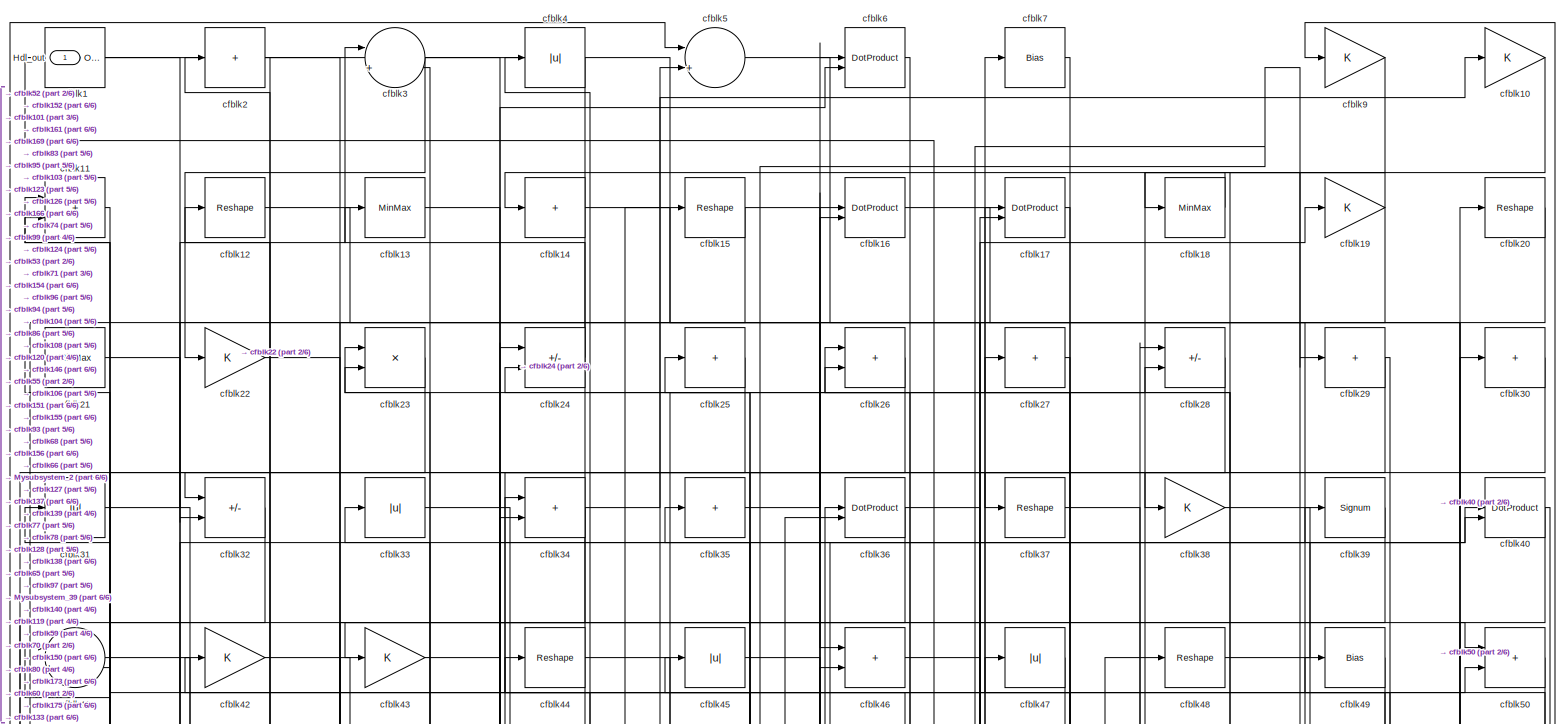
[diagram: root canvas - part 1/6, full width, top band]
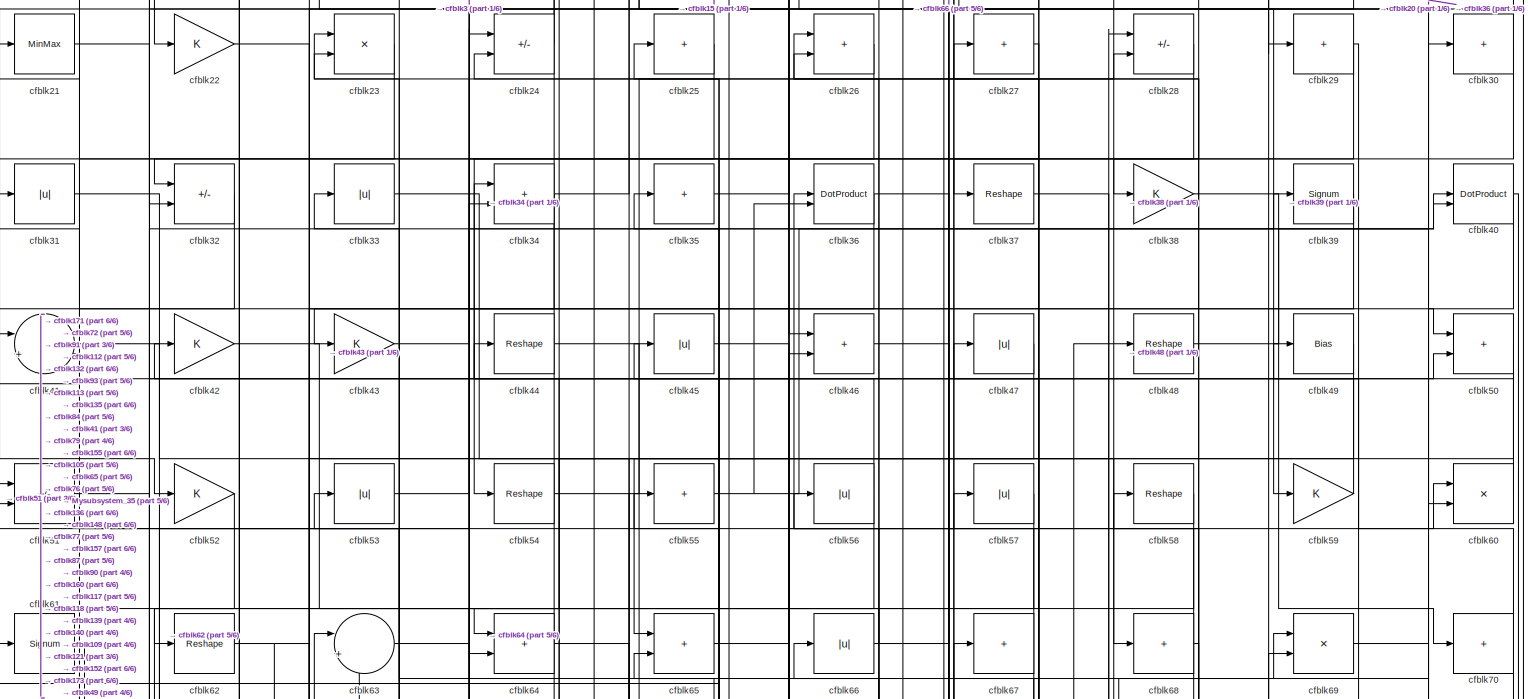
[diagram: root canvas - part 2/6, full width, top band]
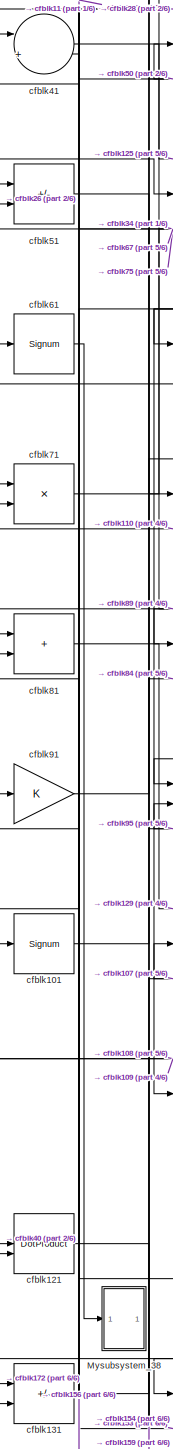
[diagram: root canvas - part 3/6, middle left region]
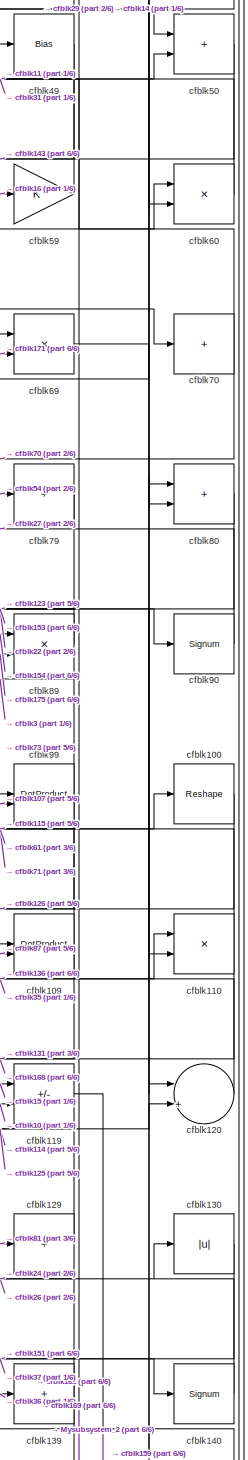
[diagram: root canvas - part 4/6, middle right region]
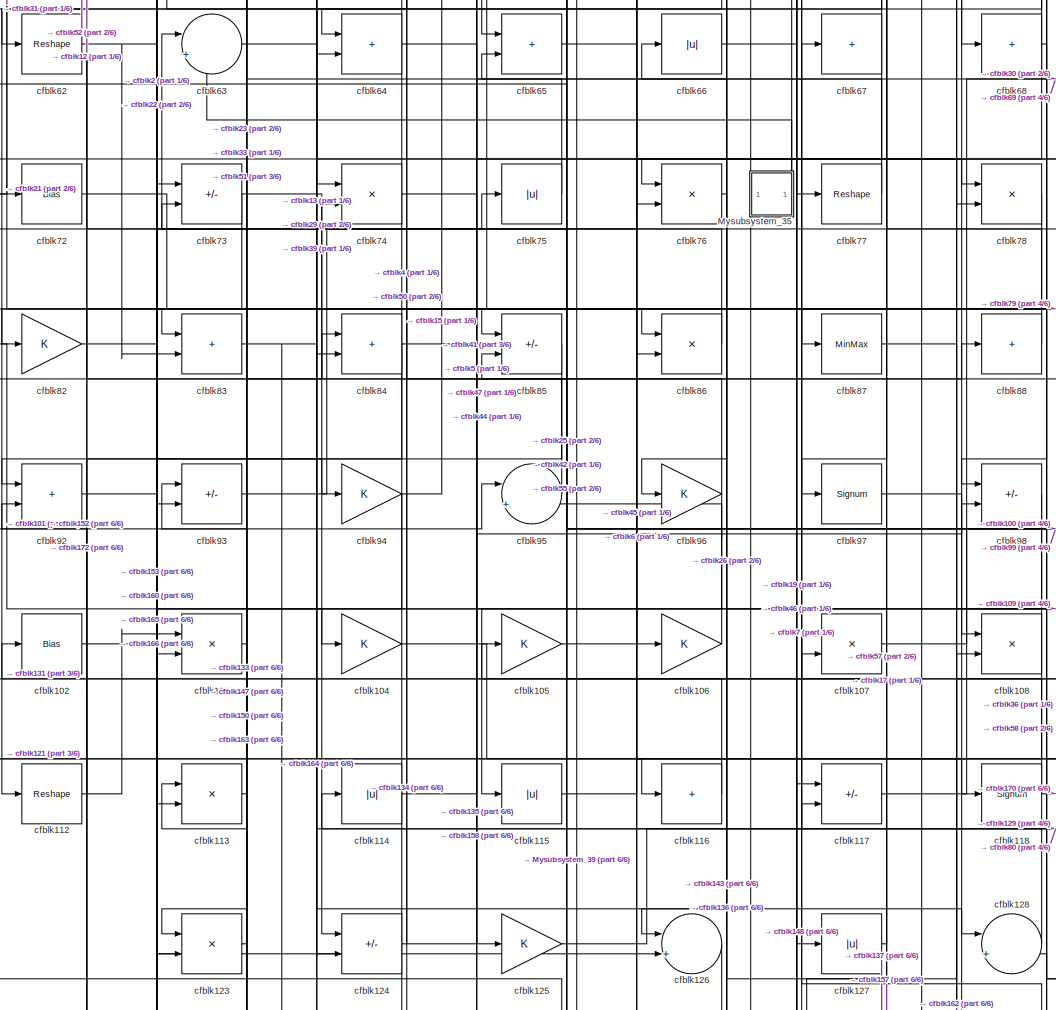
[diagram: root canvas - part 5/6, central region]
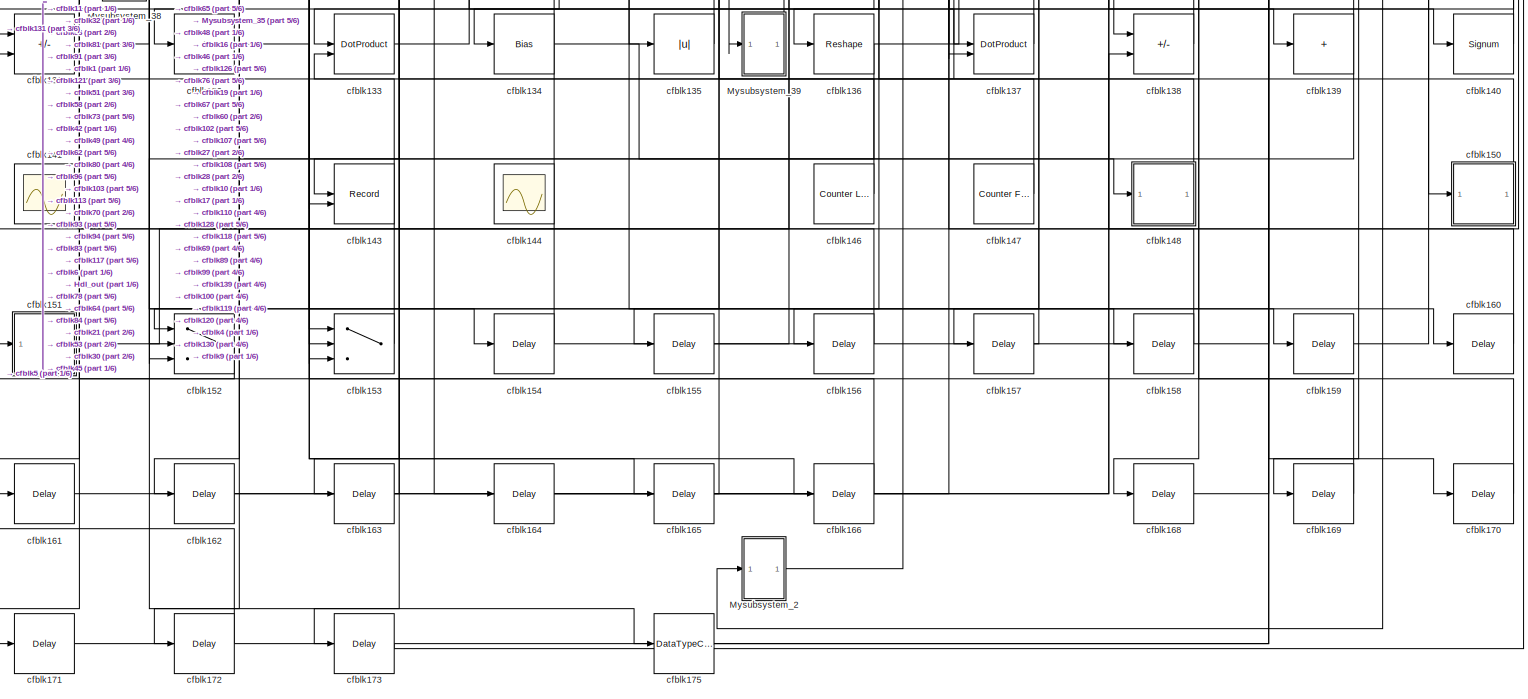
[diagram: root canvas - part 6/6, full width, bottom band]
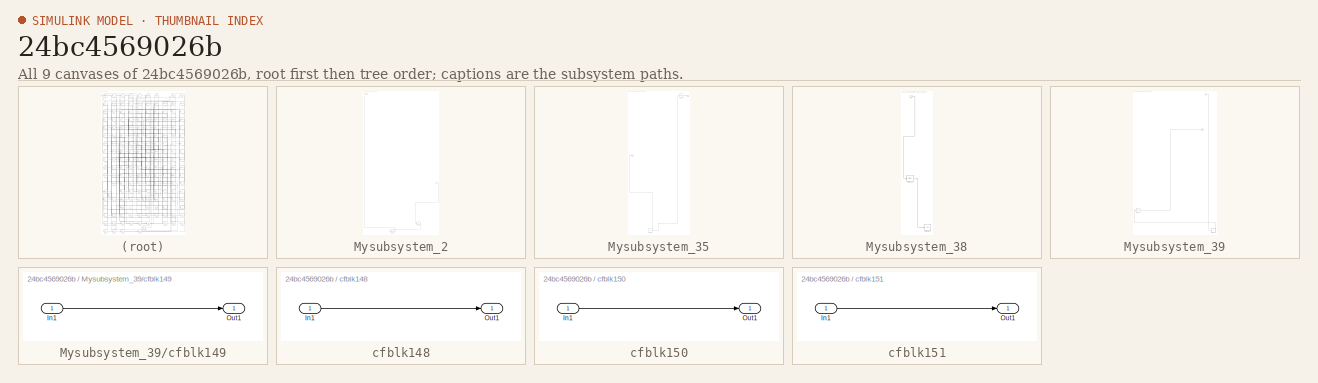
[diagram: thumbnail index - all 9 canvases of the model, root first then tree order]
MODEL slx_24bc4569026b
KIND model
CONFIG AbsTol = auto
CONFIG EnableMultiTasking = off
CONFIG FixedStep = auto
CONFIG MaxStep = auto
CONFIG MinStep = auto
CONFIG RelTol = 1e-3
CONFIG SampleTimeConstraint = Unconstrained
CONFIG SolverName = VariableStepAuto
CONFIG StartTime = 0.0
CONFIG StopTime = 10.0
BLOCK [Outport] Hdl_out
  OutDataTypeStr = uint8
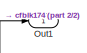
[diagram: Mysubsystem_2 - part 1/2, top left region]
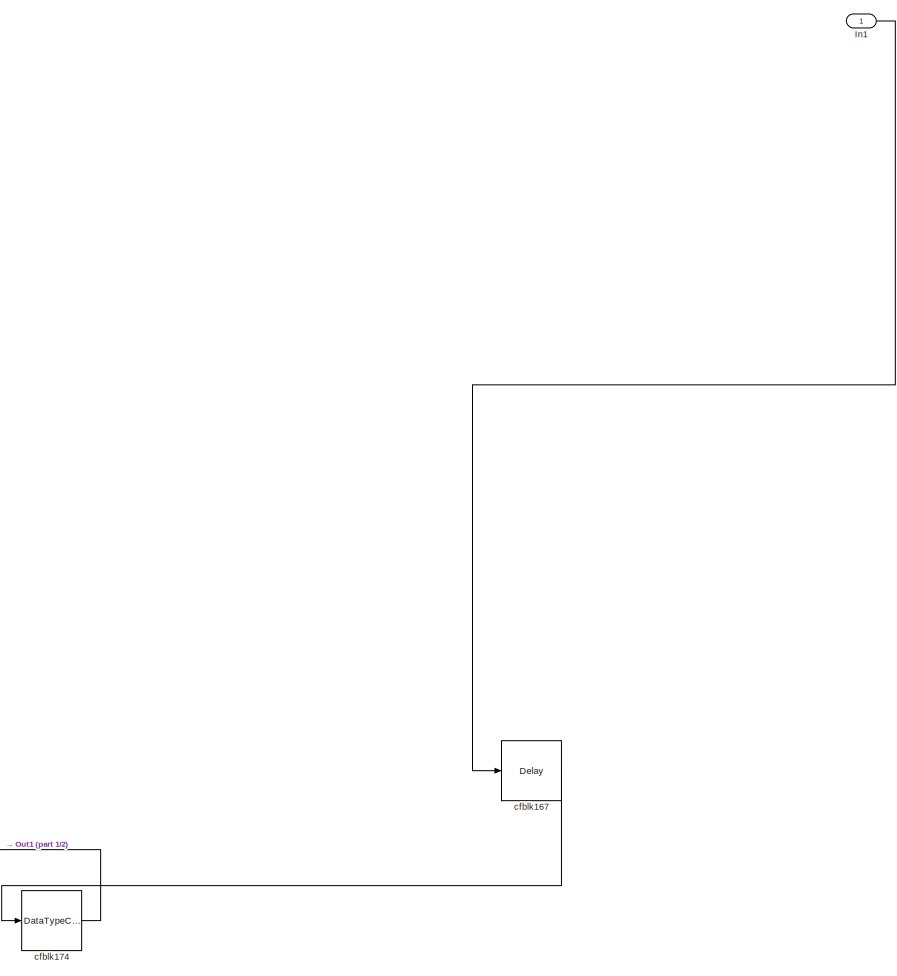
[diagram: Mysubsystem_2 - part 2/2, bottom right region]
BLOCK [SubSystem] Mysubsystem_2
  RTWFcnName = Mysubsystem_2
  RTWFcnNameOpts = User specified
  RTWFileNameOpts = Use function name
  RTWSystemCode = Reusable function
  TreatAsAtomicUnit = on
BLOCK [Inport] Mysubsystem_2/In1
BLOCK [Outport] Mysubsystem_2/Out1
BLOCK [Delay] Mysubsystem_2/cfblk167
  InputPortMap = u0
  SampleTime = 1
BLOCK [DataTypeConversion] Mysubsystem_2/cfblk174
  OutDataTypeStr = boolean
  RndMeth = Floor
  SaturateOnIntegerOverflow = off
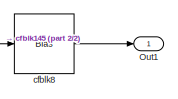
[diagram: Mysubsystem_35 - part 1/2, top right region]
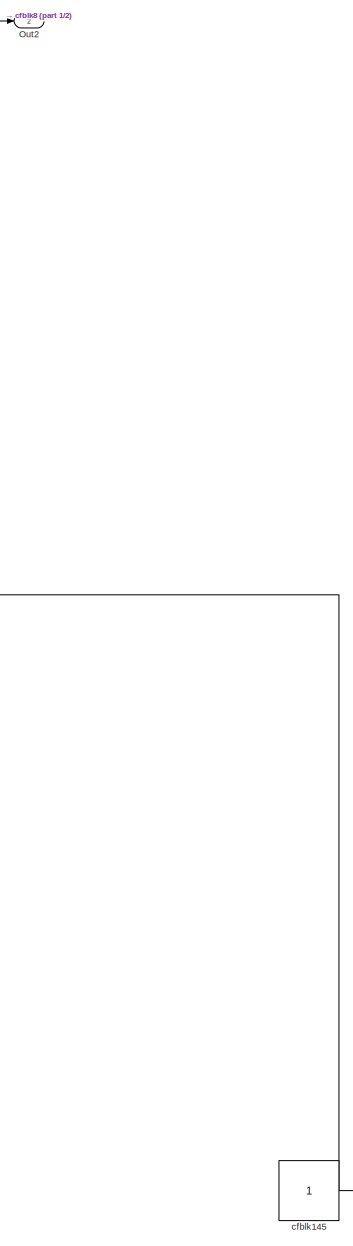
[diagram: Mysubsystem_35 - part 2/2, bottom left region]
BLOCK [SubSystem] Mysubsystem_35
  RTWFcnName = Mysubsystem_35
  RTWFcnNameOpts = User specified
  RTWFileNameOpts = Use function name
  RTWSystemCode = Reusable function
  TreatAsAtomicUnit = on
BLOCK [Outport] Mysubsystem_35/Out1
BLOCK [Outport] Mysubsystem_35/Out2
  Port = 2
BLOCK [Constant] Mysubsystem_35/cfblk145
  SampleTime = -1
BLOCK [Bias] Mysubsystem_35/cfblk8
  Bias = 0.0
  SaturateOnIntegerOverflow = off
BLOCK [SubSystem] Mysubsystem_38
  RTWFcnName = Mysubsystem_38
  RTWFcnNameOpts = User specified
  RTWFileNameOpts = Use function name
  RTWSystemCode = Reusable function
  TreatAsAtomicUnit = on
BLOCK [Inport] Mysubsystem_38/In1
BLOCK [Bias] Mysubsystem_38/cfblk111
  Bias = 0.0
  SaturateOnIntegerOverflow = off
BLOCK [Display] Mysubsystem_38/cfblk142
  Decimation = 1
BLOCK [SubSystem] Mysubsystem_39
  RTWFcnName = Mysubsystem_39
  RTWFcnNameOpts = User specified
  RTWFileNameOpts = Use function name
  RTWSystemCode = Reusable function
  TreatAsAtomicUnit = on
BLOCK [Inport] Mysubsystem_39/In1
BLOCK [Outport] Mysubsystem_39/Out1
BLOCK [Abs] Mysubsystem_39/cfblk122
  SaturateOnIntegerOverflow = off
BLOCK [SubSystem] Mysubsystem_39/cfblk149
  LibrarySourceBlock = hdlsllib/Ports &\nSubsystems/Subsystem
BLOCK [Inport] Mysubsystem_39/cfblk149/In1
BLOCK [Outport] Mysubsystem_39/cfblk149/Out1
BLOCK [Reference] cfblk1  REF=simulink/Logic and Bit
Operations/Bitwise
Operator
  LibrarySourceBlock = hdlsllib/Logic and Bit\nOperations/Bitwise\nOperator
  SourceBlock = simulink/Logic and Bit\nOperations/Bitwise\nOperator
  SourceType = Bitwise Operator
BLOCK [Gain] cfblk10
  OutDataTypeStr = uint8
BLOCK [Reshape] cfblk100
BLOCK [Signum] cfblk101
BLOCK [Bias] cfblk102
  Bias = 0.0
  SaturateOnIntegerOverflow = off
BLOCK [Product] cfblk103
  Inputs = */
  OutDataTypeStr = uint8
  RndMeth = Zero
  SaturateOnIntegerOverflow = on
BLOCK [Gain] cfblk104
  OutDataTypeStr = uint8
BLOCK [Gain] cfblk105
  OutDataTypeStr = uint8
BLOCK [Gain] cfblk106
  OutDataTypeStr = uint8
BLOCK [Product] cfblk107
  Inputs = */
  OutDataTypeStr = uint8
  RndMeth = Zero
  SaturateOnIntegerOverflow = on
BLOCK [Product] cfblk108
  Inputs = */
  OutDataTypeStr = uint8
  RndMeth = Zero
  SaturateOnIntegerOverflow = on
BLOCK [DotProduct] cfblk109
  OutDataTypeStr = uint8
BLOCK [Sum] cfblk11
  IconShape = rectangular
  OutDataTypeStr = uint8
BLOCK [Product] cfblk110
  Inputs = */
  OutDataTypeStr = uint8
  RndMeth = Zero
  SaturateOnIntegerOverflow = on
BLOCK [Reshape] cfblk112
BLOCK [Product] cfblk113
  Inputs = */
  OutDataTypeStr = uint8
  RndMeth = Zero
  SaturateOnIntegerOverflow = on
BLOCK [Abs] cfblk114
  OutDataTypeStr = uint8
  SaturateOnIntegerOverflow = off
BLOCK [Abs] cfblk115
  OutDataTypeStr = uint8
  SaturateOnIntegerOverflow = off
BLOCK [Sum] cfblk116
  IconShape = rectangular
  Inputs = +
  OutDataTypeStr = uint8
BLOCK [Sum] cfblk117
  IconShape = rectangular
  Inputs = +-
  OutDataTypeStr = uint8
BLOCK [Signum] cfblk118
BLOCK [Sum] cfblk119
  IconShape = rectangular
  Inputs = +-
  OutDataTypeStr = uint8
BLOCK [Reshape] cfblk12
BLOCK [Sum] cfblk120
  Inputs = |++
  OutDataTypeStr = uint8
BLOCK [DotProduct] cfblk121
  OutDataTypeStr = uint8
BLOCK [Product] cfblk123
  Inputs = */
  OutDataTypeStr = uint8
  RndMeth = Zero
  SaturateOnIntegerOverflow = on
BLOCK [Sum] cfblk124
  IconShape = rectangular
  Inputs = +-
  OutDataTypeStr = uint8
BLOCK [Gain] cfblk125
  OutDataTypeStr = uint8
BLOCK [Sum] cfblk126
  Inputs = |++
  OutDataTypeStr = uint8
BLOCK [Abs] cfblk127
  OutDataTypeStr = uint8
  SaturateOnIntegerOverflow = off
BLOCK [Sum] cfblk128
  Inputs = |++
  OutDataTypeStr = uint8
BLOCK [Sum] cfblk129
  IconShape = rectangular
  Inputs = +
  OutDataTypeStr = uint8
BLOCK [MinMax] cfblk13
  OutDataTypeStr = uint8
BLOCK [Abs] cfblk130
  OutDataTypeStr = uint8
  SaturateOnIntegerOverflow = off
BLOCK [Sum] cfblk131
  IconShape = rectangular
  Inputs = +-
  OutDataTypeStr = uint8
BLOCK [Sum] cfblk132
  IconShape = rectangular
  Inputs = +
  OutDataTypeStr = uint8
BLOCK [DotProduct] cfblk133
  OutDataTypeStr = uint8
BLOCK [Bias] cfblk134
  Bias = 0.0
  SaturateOnIntegerOverflow = off
BLOCK [Abs] cfblk135
  OutDataTypeStr = uint8
  SaturateOnIntegerOverflow = off
BLOCK [Reshape] cfblk136
BLOCK [DotProduct] cfblk137
  OutDataTypeStr = uint8
BLOCK [Sum] cfblk138
  IconShape = rectangular
  Inputs = +-
  OutDataTypeStr = uint8
BLOCK [Sum] cfblk139
  IconShape = rectangular
  Inputs = +
  OutDataTypeStr = uint8
BLOCK [Sum] cfblk14
  IconShape = rectangular
  Inputs = +
  OutDataTypeStr = uint8
BLOCK [Signum] cfblk140
BLOCK [Scope] cfblk141
  Floating = on
  NumInputPorts = 1
  ScopeSpecificationString = Simulink.scopes.TimeScopeBlockCfg('CurrentConfiguration', extmgr.ConfigurationSet(extmgr.Configuration('Core','General UI',true,'FigureColor',[0.156862745098039 0.156862745098039 0.156862745098039]),extmgr.Configuration('Core','Source UI',true),extmgr.Configuration('Sources','WiredSimulink',true,'DataLoggingVariableName','ScopeData1','DataLoggingSaveFormat','StructureWithTime','DataLoggingLimitDat...<+2713ch>
BLOCK [Record] cfblk143
  CompatibilityTag = XY
  FileSettingsInternal = {"entries":[{"content":{"excelSettings":{"content":{},"type":"Streamout.ExcelSettings"}},"type":"Streamout.FileSettingStorage","uuid":""}],"packageUris":["http:\/\/schema.mathworks.com\/mf0\/streamout_blocks\/R2020a"],"version":"1.0"}
  Layout = [1 1]
  SignalsInternal = {"entries":[{"content":{"signals":[{"content":{"blockPath":[],"dimensions":[1],"domain":"","lineColor":"#a2142f","plots":[1],"port":1,"signalID":31438,"signalName":"cfblk126"},"type":"RecordBlkView.Signal","uuid":""},{"content":{"blockPath":[],"dimensions":[1],"domain":"","lineColor":"#139fff","plots":[1],"port":2,"signalID":31441,"signalName":"cfblk49"},"type":"RecordBlkView.Signal","uuid":""}]},...<+143ch>
  VisualizationBindings = {"xyplotplugin":{"info":[{"series":[{"bindingParametersList":[{"parameter":"X-Axis","signalID":31438,"signalName":"cfblk126"},{"parameter":"Y-Axis","signalID":31441,"signalName":"cfblk49"}],"seriesID":4934}],"subplotID":1}]}}
  st = -1
BLOCK [Scope] cfblk144
  Floating = on
  NumInputPorts = 1
  ScopeSpecificationString = Simulink.scopes.TimeScopeBlockCfg('CurrentConfiguration', extmgr.ConfigurationSet(extmgr.Configuration('Core','General UI',true,'FigureColor',[0.156862745098039 0.156862745098039 0.156862745098039]),extmgr.Configuration('Core','Source UI',true),extmgr.Configuration('Sources','WiredSimulink',true,'DataLoggingVariableName','ScopeData1','DataLoggingSaveFormat','StructureWithTime','DataLoggingLimitDat...<+2713ch>
BLOCK [Reference] cfblk146  REF=hdlsllib/Sources/Counter
Limited
  SourceBlock = hdlsllib/Sources/Counter\nLimited
  SourceType = Counter Limited
BLOCK [Reference] cfblk147  REF=hdlsllib/Sources/Counter
Free-Running
  SourceBlock = hdlsllib/Sources/Counter\nFree-Running
  SourceType = Counter Free-Running
BLOCK [SubSystem] cfblk148
  LibrarySourceBlock = hdlsllib/Ports &\nSubsystems/Subsystem
BLOCK [Inport] cfblk148/In1
BLOCK [Outport] cfblk148/Out1
BLOCK [Reshape] cfblk15
BLOCK [SubSystem] cfblk150
  LibrarySourceBlock = hdlsllib/Ports &\nSubsystems/Subsystem
BLOCK [Inport] cfblk150/In1
BLOCK [Outport] cfblk150/Out1
BLOCK [SubSystem] cfblk151
  LibrarySourceBlock = hdlsllib/Ports &\nSubsystems/Subsystem
BLOCK [Inport] cfblk151/In1
BLOCK [Outport] cfblk151/Out1
BLOCK [Switch] cfblk152
  InputSameDT = off
  OutDataTypeStr = uint8
  SaturateOnIntegerOverflow = off
BLOCK [Switch] cfblk153
  InputSameDT = off
  OutDataTypeStr = uint8
  SaturateOnIntegerOverflow = off
BLOCK [Delay] cfblk154
  InputPortMap = u0
  SampleTime = 1
BLOCK [Delay] cfblk155
  InputPortMap = u0
  SampleTime = 1
BLOCK [Delay] cfblk156
  InputPortMap = u0
  SampleTime = 1
BLOCK [Delay] cfblk157
  InputPortMap = u0
  SampleTime = 1
BLOCK [Delay] cfblk158
  InputPortMap = u0
  SampleTime = 1
BLOCK [Delay] cfblk159
  InputPortMap = u0
  SampleTime = 1
BLOCK [DotProduct] cfblk16
  OutDataTypeStr = uint8
BLOCK [Delay] cfblk160
  InputPortMap = u0
  SampleTime = 1
BLOCK [Delay] cfblk161
  InputPortMap = u0
  SampleTime = 1
BLOCK [Delay] cfblk162
  InputPortMap = u0
  SampleTime = 1
BLOCK [Delay] cfblk163
  InputPortMap = u0
  SampleTime = 1
BLOCK [Delay] cfblk164
  InputPortMap = u0
  SampleTime = 1
BLOCK [Delay] cfblk165
  InputPortMap = u0
  SampleTime = 1
BLOCK [Delay] cfblk166
  InputPortMap = u0
  SampleTime = 1
BLOCK [Delay] cfblk168
  InputPortMap = u0
  SampleTime = 1
BLOCK [Delay] cfblk169
  InputPortMap = u0
  SampleTime = 1
BLOCK [DotProduct] cfblk17
  OutDataTypeStr = uint8
BLOCK [Delay] cfblk170
  InputPortMap = u0
  SampleTime = 1
BLOCK [Delay] cfblk171
  InputPortMap = u0
  SampleTime = 1
BLOCK [Delay] cfblk172
  InputPortMap = u0
  SampleTime = 1
BLOCK [Delay] cfblk173
  InputPortMap = u0
  SampleTime = 1
BLOCK [DataTypeConversion] cfblk175
  OutDataTypeStr = uint8
  RndMeth = Floor
  SaturateOnIntegerOverflow = off
BLOCK [MinMax] cfblk18
  OutDataTypeStr = uint8
BLOCK [Gain] cfblk19
  OutDataTypeStr = uint8
BLOCK [Sum] cfblk2
  IconShape = rectangular
  Inputs = +
  OutDataTypeStr = uint8
BLOCK [Reshape] cfblk20
BLOCK [MinMax] cfblk21
  OutDataTypeStr = uint8
BLOCK [Gain] cfblk22
  OutDataTypeStr = uint8
BLOCK [Product] cfblk23
  Inputs = */
  OutDataTypeStr = uint8
  RndMeth = Zero
  SaturateOnIntegerOverflow = on
BLOCK [Sum] cfblk24
  IconShape = rectangular
  Inputs = +-
  OutDataTypeStr = uint8
BLOCK [Sum] cfblk25
  IconShape = rectangular
  Inputs = +
  OutDataTypeStr = uint8
BLOCK [Sum] cfblk26
  IconShape = rectangular
  OutDataTypeStr = uint8
BLOCK [Sum] cfblk27
  IconShape = rectangular
  Inputs = +
  OutDataTypeStr = uint8
BLOCK [Sum] cfblk28
  IconShape = rectangular
  Inputs = +-
  OutDataTypeStr = uint8
BLOCK [Sum] cfblk29
  IconShape = rectangular
  Inputs = +
  OutDataTypeStr = uint8
BLOCK [Sum] cfblk3
  Inputs = |++
  OutDataTypeStr = uint8
BLOCK [Sum] cfblk30
  IconShape = rectangular
  Inputs = +
  OutDataTypeStr = uint8
BLOCK [Abs] cfblk31
  OutDataTypeStr = uint8
  SaturateOnIntegerOverflow = off
BLOCK [Sum] cfblk32
  IconShape = rectangular
  Inputs = +-
  OutDataTypeStr = uint8
BLOCK [Abs] cfblk33
  OutDataTypeStr = uint8
  SaturateOnIntegerOverflow = off
BLOCK [Sum] cfblk34
  IconShape = rectangular
  OutDataTypeStr = uint8
BLOCK [Sum] cfblk35
  IconShape = rectangular
  Inputs = +
  OutDataTypeStr = uint8
BLOCK [DotProduct] cfblk36
  OutDataTypeStr = uint8
BLOCK [Reshape] cfblk37
BLOCK [Gain] cfblk38
  OutDataTypeStr = uint8
BLOCK [Signum] cfblk39
BLOCK [Abs] cfblk4
  OutDataTypeStr = uint8
  SaturateOnIntegerOverflow = off
BLOCK [DotProduct] cfblk40
  OutDataTypeStr = uint8
BLOCK [Sum] cfblk41
  Inputs = |++
  OutDataTypeStr = uint8
BLOCK [Gain] cfblk42
  OutDataTypeStr = uint8
BLOCK [Gain] cfblk43
  OutDataTypeStr = uint8
BLOCK [Reshape] cfblk44
BLOCK [Abs] cfblk45
  OutDataTypeStr = uint8
  SaturateOnIntegerOverflow = off
BLOCK [Sum] cfblk46
  IconShape = rectangular
  OutDataTypeStr = uint8
BLOCK [Abs] cfblk47
  OutDataTypeStr = uint8
  SaturateOnIntegerOverflow = off
BLOCK [Reshape] cfblk48
BLOCK [Bias] cfblk49
  Bias = 0.0
  SaturateOnIntegerOverflow = off
BLOCK [Sum] cfblk5
  Inputs = |++
  OutDataTypeStr = uint8
BLOCK [Sum] cfblk50
  IconShape = rectangular
  OutDataTypeStr = uint8
BLOCK [Sum] cfblk51
  IconShape = rectangular
  Inputs = +-
  OutDataTypeStr = uint8
BLOCK [Gain] cfblk52
  OutDataTypeStr = uint8
BLOCK [Abs] cfblk53
  OutDataTypeStr = uint8
  SaturateOnIntegerOverflow = off
BLOCK [Reshape] cfblk54
BLOCK [Sum] cfblk55
  IconShape = rectangular
  Inputs = +
  OutDataTypeStr = uint8
BLOCK [Abs] cfblk56
  OutDataTypeStr = uint8
  SaturateOnIntegerOverflow = off
BLOCK [Abs] cfblk57
  OutDataTypeStr = uint8
  SaturateOnIntegerOverflow = off
BLOCK [Reshape] cfblk58
BLOCK [Gain] cfblk59
  OutDataTypeStr = uint8
BLOCK [DotProduct] cfblk6
  OutDataTypeStr = uint8
BLOCK [Product] cfblk60
  Inputs = */
  OutDataTypeStr = uint8
  RndMeth = Zero
  SaturateOnIntegerOverflow = on
BLOCK [Signum] cfblk61
BLOCK [Reshape] cfblk62
BLOCK [Sum] cfblk63
  Inputs = |++
  OutDataTypeStr = uint8
BLOCK [Sum] cfblk64
  IconShape = rectangular
  OutDataTypeStr = uint8
BLOCK [Sum] cfblk65
  IconShape = rectangular
  OutDataTypeStr = uint8
BLOCK [Abs] cfblk66
  OutDataTypeStr = uint8
  SaturateOnIntegerOverflow = off
BLOCK [Sum] cfblk67
  IconShape = rectangular
  Inputs = +
  OutDataTypeStr = uint8
BLOCK [Sum] cfblk68
  IconShape = rectangular
  Inputs = +
  OutDataTypeStr = uint8
BLOCK [Product] cfblk69
  Inputs = */
  OutDataTypeStr = uint8
  RndMeth = Zero
  SaturateOnIntegerOverflow = on
BLOCK [Bias] cfblk7
  Bias = 0.0
  SaturateOnIntegerOverflow = off
BLOCK [Sum] cfblk70
  IconShape = rectangular
  Inputs = +
  OutDataTypeStr = uint8
BLOCK [Product] cfblk71
  Inputs = */
  OutDataTypeStr = uint8
  RndMeth = Zero
  SaturateOnIntegerOverflow = on
BLOCK [Bias] cfblk72
  Bias = 0.0
  SaturateOnIntegerOverflow = off
BLOCK [Sum] cfblk73
  IconShape = rectangular
  Inputs = +-
  OutDataTypeStr = uint8
BLOCK [Product] cfblk74
  Inputs = */
  OutDataTypeStr = uint8
  RndMeth = Zero
  SaturateOnIntegerOverflow = on
BLOCK [Abs] cfblk75
  OutDataTypeStr = uint8
  SaturateOnIntegerOverflow = off
BLOCK [Product] cfblk76
  Inputs = */
  OutDataTypeStr = uint8
  RndMeth = Zero
  SaturateOnIntegerOverflow = on
BLOCK [Reshape] cfblk77
BLOCK [Product] cfblk78
  Inputs = */
  OutDataTypeStr = uint8
  RndMeth = Zero
  SaturateOnIntegerOverflow = on
BLOCK [Sum] cfblk79
  IconShape = rectangular
  Inputs = +
  OutDataTypeStr = uint8
BLOCK [Sum] cfblk80
  IconShape = rectangular
  OutDataTypeStr = uint8
BLOCK [Sum] cfblk81
  IconShape = rectangular
  OutDataTypeStr = uint8
BLOCK [Gain] cfblk82
  OutDataTypeStr = uint8
BLOCK [Sum] cfblk83
  IconShape = rectangular
  OutDataTypeStr = uint8
BLOCK [Sum] cfblk84
  IconShape = rectangular
  OutDataTypeStr = uint8
BLOCK [Sum] cfblk85
  IconShape = rectangular
  Inputs = +-
  OutDataTypeStr = uint8
BLOCK [Product] cfblk86
  Inputs = */
  OutDataTypeStr = uint8
  RndMeth = Zero
  SaturateOnIntegerOverflow = on
BLOCK [MinMax] cfblk87
  OutDataTypeStr = uint8
BLOCK [Sum] cfblk88
  IconShape = rectangular
  Inputs = +
  OutDataTypeStr = uint8
BLOCK [Product] cfblk89
  Inputs = */
  OutDataTypeStr = uint8
  RndMeth = Zero
  SaturateOnIntegerOverflow = on
BLOCK [Gain] cfblk9
  OutDataTypeStr = uint8
BLOCK [Signum] cfblk90
BLOCK [Gain] cfblk91
  OutDataTypeStr = uint8
BLOCK [Sum] cfblk92
  IconShape = rectangular
  OutDataTypeStr = uint8
BLOCK [Sum] cfblk93
  IconShape = rectangular
  Inputs = +-
  OutDataTypeStr = uint8
BLOCK [Gain] cfblk94
  OutDataTypeStr = uint8
BLOCK [Sum] cfblk95
  Inputs = |++
  OutDataTypeStr = uint8
BLOCK [Gain] cfblk96
  OutDataTypeStr = uint8
BLOCK [Signum] cfblk97
BLOCK [Sum] cfblk98
  IconShape = rectangular
  Inputs = +-
  OutDataTypeStr = uint8
BLOCK [DotProduct] cfblk99
  OutDataTypeStr = uint8
LINE Mysubsystem_2/In1:1 -> Mysubsystem_2/cfblk167:1
LINE Mysubsystem_2/cfblk167:1 -> Mysubsystem_2/cfblk174:1
LINE Mysubsystem_2/cfblk174:1 -> Mysubsystem_2/Out1:1
LINE Mysubsystem_2:1 -> cfblk1:1
NET Mysubsystem_35/cfblk145:1 -> Mysubsystem_35/Out2:1, Mysubsystem_35/cfblk8:1
LINE Mysubsystem_35/cfblk8:1 -> Mysubsystem_35/Out1:1
NET Mysubsystem_35:1 -> Mysubsystem_39:1, cfblk29:1
LINE Mysubsystem_35:2 -> cfblk63:2
LINE Mysubsystem_38/In1:1 -> Mysubsystem_38/cfblk111:1
LINE Mysubsystem_38/cfblk111:1 -> Mysubsystem_38/cfblk142:1
LINE Mysubsystem_39/In1:1 -> Mysubsystem_39/cfblk149:1
LINE Mysubsystem_39/cfblk122:1 -> Mysubsystem_39/Out1:1
LINE Mysubsystem_39/cfblk149/In1:1 -> Mysubsystem_39/cfblk149/Out1:1
LINE Mysubsystem_39/cfblk149:1 -> Mysubsystem_39/cfblk122:1
LINE Mysubsystem_39:1 -> cfblk48:1
LINE cfblk100:1 -> cfblk169:1
NET cfblk101:1 -> cfblk84:1, cfblk95:1
LINE cfblk102:1 -> cfblk165:1
LINE cfblk103:1 -> cfblk163:1
NET cfblk104:1 -> cfblk116:1, cfblk5:2
LINE cfblk105:1 -> cfblk57:1
NET cfblk106:1 -> cfblk85:2, cfblk95:2
LINE cfblk107:1 -> cfblk99:2
NET cfblk108:1 -> cfblk121:2, cfblk42:1
NET cfblk109:1 -> cfblk131:2, cfblk61:1
NET cfblk10:1 -> cfblk119:2, cfblk138:1
NET cfblk110:1 -> cfblk168:1, cfblk71:1
NET cfblk112:1 -> cfblk103:1, cfblk92:2
LINE cfblk113:1 -> cfblk23:2
NET cfblk114:1 -> cfblk69:1, cfblk98:2
LINE cfblk115:1 -> cfblk100:1
LINE cfblk116:1 -> cfblk105:1
LINE cfblk117:1 -> cfblk30:1
NET cfblk118:1 -> cfblk170:1, cfblk58:1, cfblk66:1
LINE cfblk119:1 -> Mysubsystem_2:1
LINE cfblk11:1 -> cfblk101:1
LINE cfblk120:1 -> cfblk35:1
LINE cfblk121:1 -> cfblk159:1
LINE cfblk123:1 -> cfblk33:1
NET cfblk124:1 -> cfblk4:1, cfblk88:1
LINE cfblk125:1 -> cfblk80:1
LINE cfblk126:1 -> cfblk143:1
LINE cfblk127:1 -> cfblk47:1
LINE cfblk128:1 -> cfblk7:1
LINE cfblk129:1 -> cfblk114:1
LINE cfblk12:1 -> cfblk46:1
LINE cfblk130:1 -> cfblk151:1
LINE cfblk131:1 -> cfblk107:1
LINE cfblk132:1 -> cfblk153:1
NET cfblk133:1 -> cfblk117:2, cfblk6:2
LINE cfblk134:1 -> cfblk148:1
NET cfblk135:1 -> cfblk21:1, cfblk53:1
NET cfblk136:1 -> cfblk110:1, cfblk152:3, cfblk60:1
LINE cfblk137:1 -> cfblk102:1
LINE cfblk138:1 -> cfblk17:1
NET cfblk139:1 -> cfblk162:1, cfblk26:1
LINE cfblk13:1 -> cfblk78:1
NET cfblk140:1 -> cfblk130:1, cfblk24:2
LINE cfblk146:1 -> cfblk45:1
LINE cfblk147:1 -> cfblk113:1
LINE cfblk148/In1:1 -> cfblk148/Out1:1
NET cfblk148:1 -> cfblk56:1, cfblk67:1
LINE cfblk14:1 -> cfblk80:2
LINE cfblk150/In1:1 -> cfblk150/Out1:1
LINE cfblk150:1 -> cfblk93:1
LINE cfblk151/In1:1 -> cfblk151/Out1:1
LINE cfblk151:1 -> cfblk46:2
LINE cfblk152:1 -> cfblk5:1
LINE cfblk153:1 -> cfblk91:1
NET cfblk154:1 -> Hdl_out:1, cfblk89:1
LINE cfblk155:1 -> cfblk16:2
LINE cfblk156:1 -> cfblk81:2
LINE cfblk157:1 -> cfblk107:2
LINE cfblk158:1 -> cfblk117:1
LINE cfblk159:1 -> cfblk120:2
NET cfblk15:1 -> cfblk119:1, cfblk52:1
LINE cfblk160:1 -> cfblk28:1
LINE cfblk161:1 -> cfblk17:2
LINE cfblk162:1 -> cfblk108:2
LINE cfblk163:1 -> cfblk133:2
LINE cfblk164:1 -> cfblk138:2
LINE cfblk165:1 -> cfblk65:2
LINE cfblk166:1 -> cfblk73:1
LINE cfblk168:1 -> cfblk99:1
LINE cfblk169:1 -> cfblk11:2
LINE cfblk16:1 -> cfblk59:1
LINE cfblk170:1 -> cfblk128:2
LINE cfblk171:1 -> cfblk69:2
LINE cfblk172:1 -> cfblk131:1
LINE cfblk173:1 -> cfblk9:1
LINE cfblk175:1 -> cfblk89:2
LINE cfblk17:1 -> cfblk97:1
LINE cfblk18:1 -> cfblk14:1
NET cfblk19:1 -> cfblk123:2, cfblk137:2, cfblk18:1
LINE cfblk1:1 -> cfblk175:1
LINE cfblk20:1 -> cfblk32:2
LINE cfblk21:1 -> cfblk72:1
NET cfblk22:1 -> cfblk90:1, cfblk93:2
LINE cfblk23:1 -> cfblk62:1
LINE cfblk24:1 -> cfblk3:1
LINE cfblk25:1 -> cfblk54:1
LINE cfblk26:1 -> cfblk51:2
LINE cfblk27:1 -> cfblk157:1
LINE cfblk28:1 -> cfblk41:2
NET cfblk29:1 -> cfblk109:1, cfblk84:2
NET cfblk2:1 -> cfblk126:2, cfblk32:1
NET cfblk30:1 -> cfblk155:1, cfblk87:1
NET cfblk31:1 -> cfblk13:1, cfblk83:1
LINE cfblk32:1 -> cfblk161:1
LINE cfblk33:1 -> cfblk68:1
NET cfblk34:1 -> cfblk10:1, cfblk43:1
LINE cfblk35:1 -> cfblk16:1
NET cfblk36:1 -> cfblk103:2, cfblk139:1
LINE cfblk37:1 -> cfblk140:1
LINE cfblk38:1 -> cfblk70:1
NET cfblk39:1 -> cfblk124:2, cfblk71:2
NET cfblk3:1 -> cfblk22:1, cfblk50:1
NET cfblk40:1 -> cfblk121:1, cfblk60:2
NET cfblk41:1 -> cfblk125:1, cfblk50:2
NET cfblk42:1 -> cfblk166:1, cfblk74:1
LINE cfblk43:1 -> cfblk24:1
LINE cfblk44:1 -> cfblk86:1
LINE cfblk45:1 -> cfblk106:1
NET cfblk46:1 -> cfblk127:1, cfblk78:2
LINE cfblk47:1 -> cfblk65:1
LINE cfblk48:1 -> cfblk40:1
LINE cfblk49:1 -> cfblk143:2
LINE cfblk4:1 -> cfblk150:1
LINE cfblk50:1 -> cfblk64:1
LINE cfblk51:1 -> cfblk154:1
LINE cfblk52:1 -> cfblk112:1
LINE cfblk53:1 -> cfblk39:1
NET cfblk54:1 -> cfblk28:2, cfblk79:1
NET cfblk55:1 -> cfblk20:1, cfblk36:2
NET cfblk56:1 -> cfblk171:1, cfblk23:1
LINE cfblk57:1 -> cfblk64:2
NET cfblk58:1 -> cfblk132:1, cfblk76:1
NET cfblk59:1 -> cfblk11:1, cfblk31:1
LINE cfblk5:1 -> cfblk77:1
LINE cfblk60:1 -> cfblk34:1
LINE cfblk61:1 -> Mysubsystem_38:1
NET cfblk62:1 -> cfblk104:1, cfblk160:1, cfblk83:2
LINE cfblk63:1 -> cfblk128:1
LINE cfblk64:1 -> cfblk158:1
NET cfblk65:1 -> cfblk118:1, cfblk25:1
NET cfblk66:1 -> cfblk19:1, cfblk26:2
NET cfblk67:1 -> cfblk41:1, cfblk96:1
NET cfblk68:1 -> cfblk36:1, cfblk76:2, cfblk98:1
LINE cfblk69:1 -> cfblk120:1
LINE cfblk6:1 -> cfblk156:1
NET cfblk70:1 -> cfblk152:2, cfblk173:1, cfblk49:1
LINE cfblk71:1 -> cfblk34:2
NET cfblk72:1 -> cfblk85:1, cfblk94:1
NET cfblk73:1 -> cfblk124:1, cfblk172:1
LINE cfblk74:1 -> cfblk86:2
LINE cfblk75:1 -> cfblk51:1
LINE cfblk76:1 -> cfblk136:1
LINE cfblk77:1 -> cfblk55:1
LINE cfblk78:1 -> cfblk134:1
LINE cfblk79:1 -> cfblk123:1
LINE cfblk7:1 -> cfblk37:1
NET cfblk80:1 -> cfblk110:2, cfblk153:2
LINE cfblk81:1 -> cfblk129:1
LINE cfblk82:1 -> cfblk113:2
NET cfblk83:1 -> cfblk137:1, cfblk164:1
NET cfblk84:1 -> cfblk135:1, cfblk152:1
LINE cfblk85:1 -> cfblk92:1
NET cfblk86:1 -> cfblk2:1, cfblk82:1
LINE cfblk87:1 -> cfblk109:2
LINE cfblk88:1 -> cfblk63:1
LINE cfblk89:1 -> cfblk81:1
LINE cfblk90:1 -> cfblk27:1
LINE cfblk91:1 -> cfblk40:2
LINE cfblk92:1 -> cfblk75:1
LINE cfblk93:1 -> cfblk6:1
NET cfblk94:1 -> cfblk133:1, cfblk15:1
NET cfblk95:1 -> cfblk12:1, cfblk74:2
NET cfblk96:1 -> cfblk153:3, cfblk44:1
LINE cfblk97:1 -> cfblk108:1
LINE cfblk98:1 -> cfblk115:1
NET cfblk99:1 -> cfblk126:1, cfblk3:2, cfblk73:2
LINE cfblk9:1 -> cfblk38:1
note: NET lines group one-source signal fan-out (src -> all destinations, sorted); 1:1 wires keep LINE
